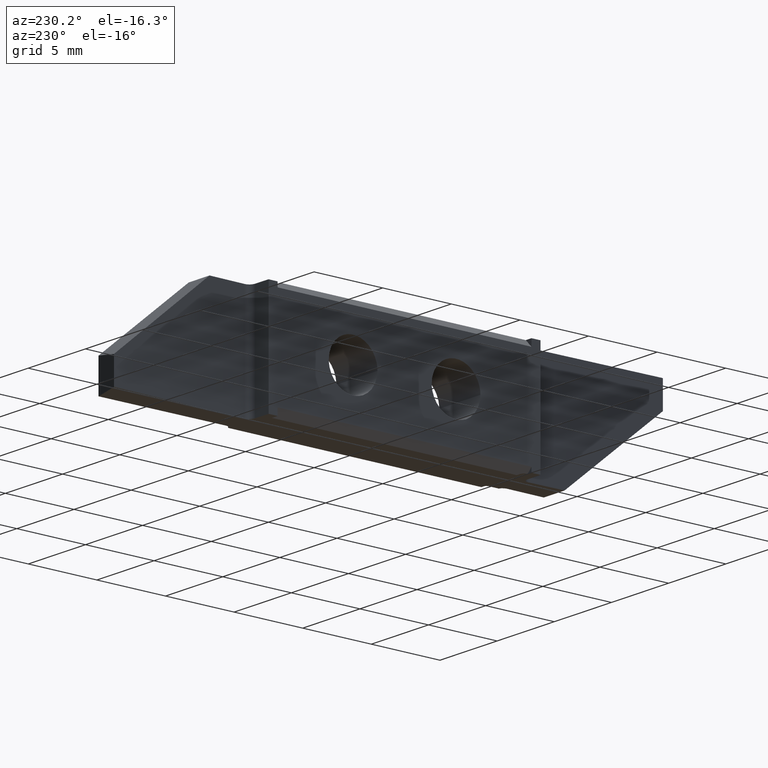
[diagram: clean part render]
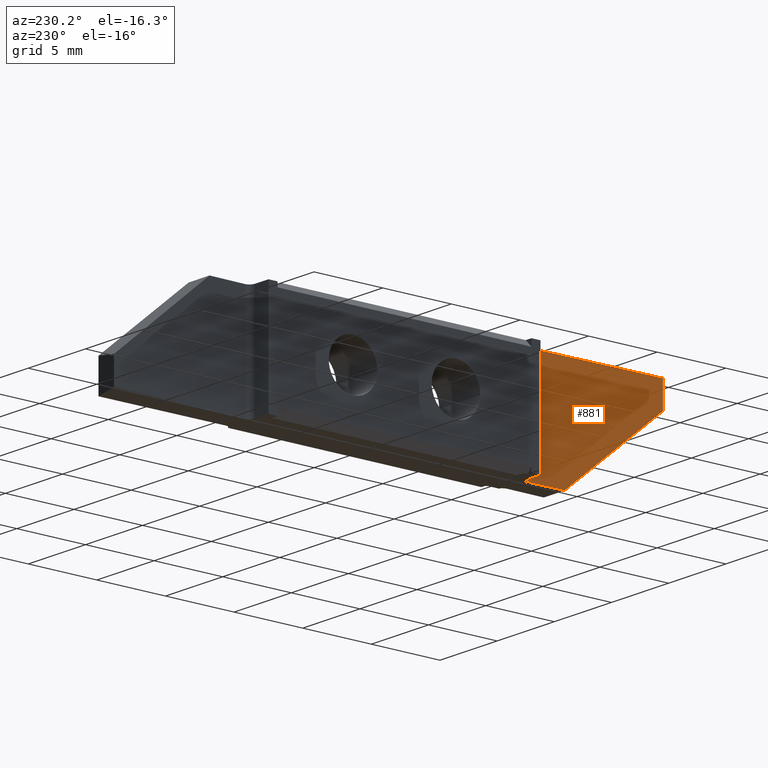
[diagram: same view with one face highlighted and labeled with its STEP entity id]
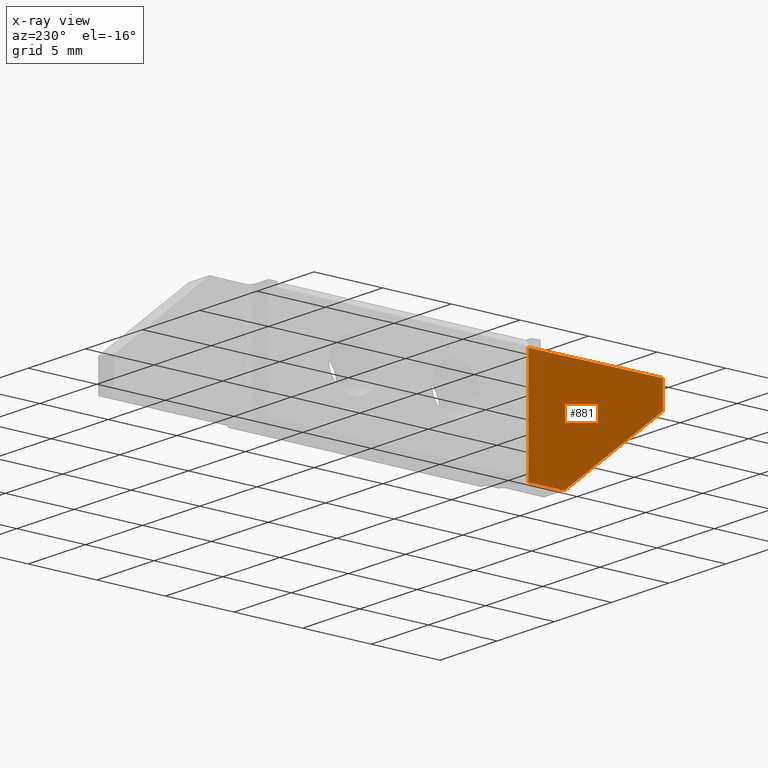
[diagram: x-ray of the same camera — body ghosted, the highlighted face saturated]
A machine part, auxiliary view. The second image highlights one B-rep face of the part: STEP entity #881.
The next image is the same camera in x-ray: the body ghosted, the highlighted face saturated — about 0% of this face is hidden behind the body in this view.
In plain terms, the highlighted planar face has unit normal (0.9998, -0.0175, -0).
Its self-contained STEP definition (entity closure, byte-faithful):
#622=CARTESIAN_POINT('',(1.578730604,-2.758388551,-6.850000168));
#623=VERTEX_POINT('',#622);
#634=CARTESIAN_POINT('',(1.53326875,-5.362896389,-6.850000163));
#635=DIRECTION('',(0.01745240644,0.9998476952,-1.851996559E-09));
#636=VECTOR('',#635,2.604904578);
#637=LINE('',#634,#636);
#638=CARTESIAN_POINT('',(1.53326875,-5.362896389,-6.850000163));
#639=VERTEX_POINT('',#638);
#640=EDGE_CURVE('',#639,#623,#637,.T.);
#680=CARTESIAN_POINT('',(1.409999902,-12.425,-0.924191614));
#681=DIRECTION('',(0.01337009209,0.7659759706,-0.6427301558));
#682=VECTOR('',#681,9.219745636);
#683=LINE('',#680,#682);
#684=CARTESIAN_POINT('',(1.409999902,-12.425,-0.924191614));
#685=VERTEX_POINT('',#684);
#686=EDGE_CURVE('',#685,#639,#683,.T.);
#751=CARTESIAN_POINT('',(1.410000106,-12.425,0.9999998504));
#752=DIRECTION('',(-1.061167691E-07,-3.69268209E-15,-1.));
#753=VECTOR('',#752,1.924191464);
#754=LINE('',#751,#753);
#755=CARTESIAN_POINT('',(1.410000106,-12.425,0.9999998504));
#756=VERTEX_POINT('',#755);
#757=EDGE_CURVE('',#756,#685,#754,.T.);
#817=CARTESIAN_POINT('',(1.50423228,-7.026583834,24.2718083));
#818=DIRECTION('',(0.9998476952,-0.01745240644,-1.06100607E-07));
#819=DIRECTION('',(1.060844473E-07,-1.851710916E-09,1.));
#820=AXIS2_PLACEMENT_3D('',#817,#818,#819);
#821=PLANE('',#820);
#822=ORIENTED_EDGE('Edge 1082',*,*,#757,.F.);
#831=ORIENTED_EDGE('Edge 1087',*,*,#686,.F.);
#840=ORIENTED_EDGE('Edge 1092',*,*,#640,.F.);
#849=CARTESIAN_POINT('',(1.578731437,-2.758388551,0.9999998325));
#850=DIRECTION('',(-1.061167677E-07,9.277787314E-15,-1.));
#851=VECTOR('',#850,7.85);
#852=LINE('',#849,#851);
#853=CARTESIAN_POINT('',(1.578731437,-2.758388551,0.9999998325));
#854=VERTEX_POINT('',#853);
#855=EDGE_CURVE('',#854,#623,#852,.T.);
#856=ORIENTED_EDGE('Edge 1097',*,*,#855,.T.);
#865=CARTESIAN_POINT('',(1.578731437,-2.758388551,0.9999998325));
#866=DIRECTION('',(-0.01745240644,-0.9998476952,1.852031649E-09));
#867=VECTOR('',#866,9.668083945);
#868=LINE('',#865,#867);
#869=EDGE_CURVE('',#854,#756,#868,.T.);
#870=ORIENTED_EDGE('Edge 212',*,*,#869,.F.);
#879=EDGE_LOOP('',(#870,#856,#840,#831,#822));
#880=FACE_OUTER_BOUND('Loop 1103',#879,.T.);
#881=ADVANCED_FACE('Face 1104',(#880),#821,.F.);